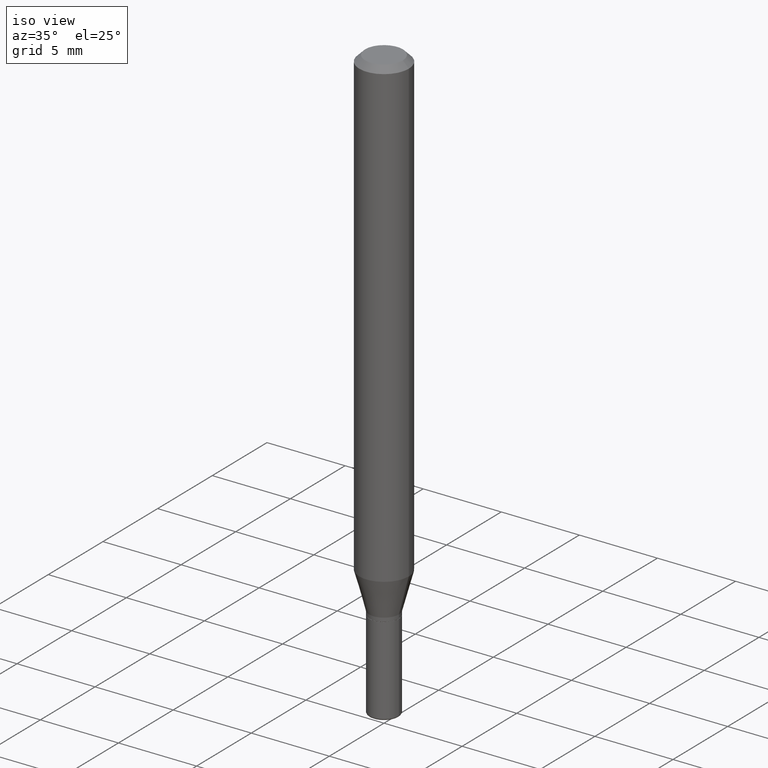
[diagram: clean part render]
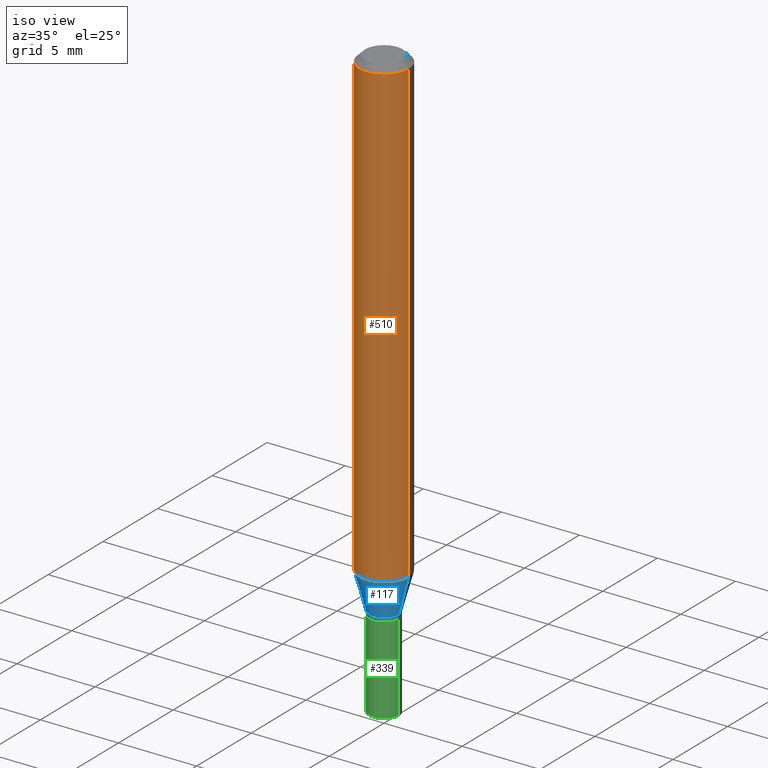
[diagram: same view with three faces highlighted in distinct colors, each labeled with its STEP entity id]
A machine part, iso view with three faces highlighted in distinct colors.
Their STEP definitions:

[orange] entity #510 — the highlighted cylindrical surface (edge-blend (fillet) strip) has radius 1.5875 mm, axis along (-0, 0, 1).
#14 = DIRECTION ( 'NONE',  ( -2.445468806185136877E-29, 3.491481338843145188E-15, 1.000000000000000000 ) ) ;
#27 = EDGE_CURVE ( 'NONE', #69, #144, #74, .T. ) ;
#32 = CARTESIAN_POINT ( 'NONE',  ( -0.06250000000000000000, -3.646875040030487022E-15, -1.171698729810778605 ) ) ;
#57 = ORIENTED_EDGE ( 'NONE', *, *, #285, .T. ) ;
#61 = DIRECTION ( 'NONE',  ( 1.000000000000000000, -6.982962677686262766E-15, 0.000000000000000000 ) ) ;
#69 = VERTEX_POINT ( 'NONE', #201 ) ;
#74 = CIRCLE ( 'NONE', #427, 0.06250000000000000000 ) ;
#80 = CARTESIAN_POINT ( 'NONE',  ( 0.06250000000000000000, -4.527399417235941308E-15, -1.171698729810778605 ) ) ;
#90 = DIRECTION ( 'NONE',  ( -2.445468806185136597E-29, 3.491481338843145583E-15, 1.000000000000000000 ) ) ;
#125 = EDGE_CURVE ( 'NONE', #355, #144, #438, .T. ) ;
#134 = AXIS2_PLACEMENT_3D ( 'NONE', #172, #90, #381 ) ;
#144 = VERTEX_POINT ( 'NONE', #353 ) ;
#172 = CARTESIAN_POINT ( 'NONE',  ( 0.000000000000000000, 0.000000000000000000, 0.000000000000000000 ) ) ;
#188 = CARTESIAN_POINT ( 'NONE',  ( 2.865352693999005712E-29, -4.090964249880549639E-15, -1.171698729810778605 ) ) ;
#201 = CARTESIAN_POINT ( 'NONE',  ( -0.06250000000000000000, -1.627579025131535151E-15, -0.01499999999999970281 ) ) ;
#202 = DIRECTION ( 'NONE',  ( 1.000000000000000000, -6.982962677686266711E-15, 0.000000000000000000 ) ) ;
#218 = ORIENTED_EDGE ( 'NONE', *, *, #27, .F. ) ;
#222 = CARTESIAN_POINT ( 'NONE',  ( -0.06250000000000000000, 4.440892098500626162E-16, -3.074334431409316114E-30 ) ) ;
#247 = DIRECTION ( 'NONE',  ( -2.445468806185136597E-29, 3.491481338843145583E-15, 1.000000000000000000 ) ) ;
#266 = DIRECTION ( 'NONE',  ( -2.445468806185136597E-29, 3.491481338843145583E-15, 1.000000000000000000 ) ) ;
#277 = VECTOR ( 'NONE', #402, 39.37007874015748143 ) ;
#285 = EDGE_CURVE ( 'NONE', #314, #355, #342, .T. ) ;
#297 = LINE ( 'NONE', #222, #388 ) ;
#314 = VERTEX_POINT ( 'NONE', #32 ) ;
#342 = CIRCLE ( 'NONE', #463, 0.06250000000000000000 ) ;
#353 = CARTESIAN_POINT ( 'NONE',  ( 0.06250000000000000000, -4.888073874380378612E-16, -0.01499999999999970281 ) ) ;
#355 = VERTEX_POINT ( 'NONE', #80 ) ;
#381 = DIRECTION ( 'NONE',  ( 1.000000000000000000, -6.982962677686266711E-15, 4.876176775795935793E-29 ) ) ;
#388 = VECTOR ( 'NONE', #14, 39.37007874015748143 ) ;
#391 = CARTESIAN_POINT ( 'NONE',  ( 0.06250000000000000000, -4.364351673553916694E-16, 3.047610484872459871E-30 ) ) ;
#402 = DIRECTION ( 'NONE',  ( -2.445468806185136877E-29, 3.491481338843145188E-15, 1.000000000000000000 ) ) ;
#412 = ORIENTED_EDGE ( 'NONE', *, *, #484, .F. ) ;
#427 = AXIS2_PLACEMENT_3D ( 'NONE', #441, #247, #202 ) ;
#431 = CYLINDRICAL_SURFACE ( 'NONE', #134, 0.06250000000000000000 ) ;
#438 = LINE ( 'NONE', #391, #277 ) ;
#441 = CARTESIAN_POINT ( 'NONE',  ( 3.668203209277632395E-31, -5.237222008264614861E-17, -0.01499999999999970281 ) ) ;
#452 = ORIENTED_EDGE ( 'NONE', *, *, #125, .T. ) ;
#458 = EDGE_LOOP ( 'NONE', ( #412, #57, #452, #218 ) ) ;
#463 = AXIS2_PLACEMENT_3D ( 'NONE', #188, #266, #61 ) ;
#465 = FACE_OUTER_BOUND ( 'NONE', #458, .T. ) ;
#484 = EDGE_CURVE ( 'NONE', #314, #69, #297, .T. ) ;
#510 = ADVANCED_FACE ( 'NONE', ( #465 ), #431, .T. ) ;

[blue] entity #117 — the highlighted conical surface has half-angle 15 deg.
#11 = LINE ( 'NONE', #449, #231 ) ;
#32 = CARTESIAN_POINT ( 'NONE',  ( -0.06250000000000000000, -3.646875040030487022E-15, -1.171698729810778605 ) ) ;
#52 = ORIENTED_EDGE ( 'NONE', *, *, #174, .T. ) ;
#61 = DIRECTION ( 'NONE',  ( 1.000000000000000000, -6.982962677686262766E-15, 0.000000000000000000 ) ) ;
#71 = FACE_OUTER_BOUND ( 'NONE', #393, .T. ) ;
#80 = CARTESIAN_POINT ( 'NONE',  ( 0.06250000000000000000, -4.527399417235941308E-15, -1.171698729810778605 ) ) ;
#91 = EDGE_CURVE ( 'NONE', #239, #272, #206, .T. ) ;
#101 = CARTESIAN_POINT ( 'NONE',  ( 0.03750000000000006800, -4.678584994049814947E-15, -1.265000000000000346 ) ) ;
#107 = ORIENTED_EDGE ( 'NONE', *, *, #91, .T. ) ;
#117 = ADVANCED_FACE ( 'NONE', ( #71 ), #142, .T. ) ;
#118 = CARTESIAN_POINT ( 'NONE',  ( 3.093518039824198624E-29, -4.416723893636579945E-15, -1.265000000000000346 ) ) ;
#138 = ORIENTED_EDGE ( 'NONE', *, *, #285, .F. ) ;
#142 = CONICAL_SURFACE ( 'NONE', #485, 0.03750000000000006800, 0.2617993877991490748 ) ;
#155 = DIRECTION ( 'NONE',  ( -2.445468806185136597E-29, 3.491481338843145583E-15, 1.000000000000000000 ) ) ;
#157 = DIRECTION ( 'NONE',  ( 1.000000000000000000, -6.982962677686255667E-15, 0.000000000000000000 ) ) ;
#174 = EDGE_CURVE ( 'NONE', #272, #355, #319, .T. ) ;
#183 = VECTOR ( 'NONE', #312, 39.37007874015748143 ) ;
#188 = CARTESIAN_POINT ( 'NONE',  ( 2.865352693999005712E-29, -4.090964249880549639E-15, -1.171698729810778605 ) ) ;
#200 = CARTESIAN_POINT ( 'NONE',  ( 3.093518039824198624E-29, -4.416723893636579945E-15, -1.265000000000000346 ) ) ;
#206 = CIRCLE ( 'NONE', #267, 0.03750000000000006800 ) ;
#231 = VECTOR ( 'NONE', #411, 39.37007874015748143 ) ;
#239 = VERTEX_POINT ( 'NONE', #437 ) ;
#243 = DIRECTION ( 'NONE',  ( 1.000000000000000000, -6.982962677686255667E-15, 0.000000000000000000 ) ) ;
#266 = DIRECTION ( 'NONE',  ( -2.445468806185136597E-29, 3.491481338843145583E-15, 1.000000000000000000 ) ) ;
#267 = AXIS2_PLACEMENT_3D ( 'NONE', #200, #482, #157 ) ;
#272 = VERTEX_POINT ( 'NONE', #101 ) ;
#284 = CARTESIAN_POINT ( 'NONE',  ( 0.03750000000000006800, -4.678584994049814947E-15, -1.265000000000000346 ) ) ;
#285 = EDGE_CURVE ( 'NONE', #314, #355, #342, .T. ) ;
#312 = DIRECTION ( 'NONE',  ( 0.2588190451025204064, 1.565188264969629659E-15, 0.9659258262890684232 ) ) ;
#314 = VERTEX_POINT ( 'NONE', #32 ) ;
#319 = LINE ( 'NONE', #284, #183 ) ;
#342 = CIRCLE ( 'NONE', #463, 0.06250000000000000000 ) ;
#348 = ORIENTED_EDGE ( 'NONE', *, *, #416, .F. ) ;
#355 = VERTEX_POINT ( 'NONE', #80 ) ;
#393 = EDGE_LOOP ( 'NONE', ( #348, #107, #52, #138 ) ) ;
#411 = DIRECTION ( 'NONE',  ( -0.2588190451025204064, 5.211531920934543942E-15, 0.9659258262890684232 ) ) ;
#416 = EDGE_CURVE ( 'NONE', #239, #314, #11, .T. ) ;
#437 = CARTESIAN_POINT ( 'NONE',  ( -0.03750000000000006800, -3.898572703878514383E-15, -1.265000000000000346 ) ) ;
#449 = CARTESIAN_POINT ( 'NONE',  ( -0.03750000000000006800, -4.150270367726541744E-15, -1.265000000000000346 ) ) ;
#463 = AXIS2_PLACEMENT_3D ( 'NONE', #188, #266, #61 ) ;
#482 = DIRECTION ( 'NONE',  ( -2.445468806185136597E-29, 3.491481338843145583E-15, 1.000000000000000000 ) ) ;
#485 = AXIS2_PLACEMENT_3D ( 'NONE', #118, #155, #243 ) ;

[green] entity #339 — the highlighted cylindrical surface (edge-blend (fillet) strip) has radius 0.9525 mm, axis along (-0, 0, 1).
#10 = EDGE_CURVE ( 'NONE', #176, #22, #318, .T. ) ;
#22 = VERTEX_POINT ( 'NONE', #44 ) ;
#30 = CARTESIAN_POINT ( 'NONE',  ( 0.03750000000000008882, -2.618611004132355933E-16, 1.828566290923480126E-30 ) ) ;
#39 = CYLINDRICAL_SURFACE ( 'NONE', #293, 0.03750000000000008882 ) ;
#44 = CARTESIAN_POINT ( 'NONE',  ( 0.03749999999999999861, -4.713499807438246596E-15, -1.275000000000000133 ) ) ;
#72 = VERTEX_POINT ( 'NONE', #359 ) ;
#75 = VECTOR ( 'NONE', #349, 39.37007874015748143 ) ;
#79 = DIRECTION ( 'NONE',  ( -2.445468806185136597E-29, 3.491481338843145583E-15, 1.000000000000000000 ) ) ;
#94 = VERTEX_POINT ( 'NONE', #271 ) ;
#132 = AXIS2_PLACEMENT_3D ( 'NONE', #283, #79, #198 ) ;
#152 = ORIENTED_EDGE ( 'NONE', *, *, #249, .T. ) ;
#154 = DIRECTION ( 'NONE',  ( 1.000000000000000000, -6.982962677686261189E-15, 0.000000000000000000 ) ) ;
#164 = FACE_OUTER_BOUND ( 'NONE', #225, .T. ) ;
#176 = VERTEX_POINT ( 'NONE', #350 ) ;
#185 = ORIENTED_EDGE ( 'NONE', *, *, #10, .F. ) ;
#186 = CARTESIAN_POINT ( 'NONE',  ( 3.655975865246778562E-29, -5.219764601570502352E-15, -1.494999999999999662 ) ) ;
#193 = LINE ( 'NONE', #352, #344 ) ;
#198 = DIRECTION ( 'NONE',  ( 1.000000000000000000, -6.982962677686268288E-15, 0.000000000000000000 ) ) ;
#203 = DIRECTION ( 'NONE',  ( -2.445468806185136597E-29, 3.491481338843145583E-15, 1.000000000000000000 ) ) ;
#225 = EDGE_LOOP ( 'NONE', ( #264, #152, #385, #185 ) ) ;
#249 = EDGE_CURVE ( 'NONE', #72, #94, #426, .T. ) ;
#252 = CARTESIAN_POINT ( 'NONE',  ( 0.000000000000000000, 0.000000000000000000, 0.000000000000000000 ) ) ;
#264 = ORIENTED_EDGE ( 'NONE', *, *, #323, .F. ) ;
#271 = CARTESIAN_POINT ( 'NONE',  ( 0.03750000000000017902, -5.481625701983738143E-15, -1.494999999999999662 ) ) ;
#283 = CARTESIAN_POINT ( 'NONE',  ( 3.117972727886049049E-29, -4.451638707025011594E-15, -1.275000000000000133 ) ) ;
#293 = AXIS2_PLACEMENT_3D ( 'NONE', #252, #203, #450 ) ;
#301 = EDGE_CURVE ( 'NONE', #94, #22, #390, .T. ) ;
#311 = DIRECTION ( 'NONE',  ( -2.445468806185136877E-29, 3.491481338843145188E-15, 1.000000000000000000 ) ) ;
#318 = CIRCLE ( 'NONE', #132, 0.03749999999999999861 ) ;
#323 = EDGE_CURVE ( 'NONE', #72, #176, #193, .T. ) ;
#339 = ADVANCED_FACE ( 'NONE', ( #164 ), #39, .T. ) ;
#344 = VECTOR ( 'NONE', #311, 39.37007874015748143 ) ;
#349 = DIRECTION ( 'NONE',  ( -2.445468806185136877E-29, 3.491481338843145188E-15, 1.000000000000000000 ) ) ;
#350 = CARTESIAN_POINT ( 'NONE',  ( -0.03749999999999999861, -4.569248128387718378E-15, -1.275000000000000133 ) ) ;
#352 = CARTESIAN_POINT ( 'NONE',  ( -0.03750000000000008882, 2.664535259100382008E-16, -1.844600658845594012E-30 ) ) ;
#359 = CARTESIAN_POINT ( 'NONE',  ( -0.03750000000000017902, -4.569248128387716800E-15, -1.494999999999999662 ) ) ;
#370 = AXIS2_PLACEMENT_3D ( 'NONE', #186, #516, #154 ) ;
#385 = ORIENTED_EDGE ( 'NONE', *, *, #301, .T. ) ;
#390 = LINE ( 'NONE', #30, #75 ) ;
#426 = CIRCLE ( 'NONE', #370, 0.03750000000000017902 ) ;
#450 = DIRECTION ( 'NONE',  ( 1.000000000000000000, -6.982962677686265922E-15, 4.876176775795935232E-29 ) ) ;
#516 = DIRECTION ( 'NONE',  ( -2.445468806185136597E-29, 3.491481338843145583E-15, 1.000000000000000000 ) ) ;